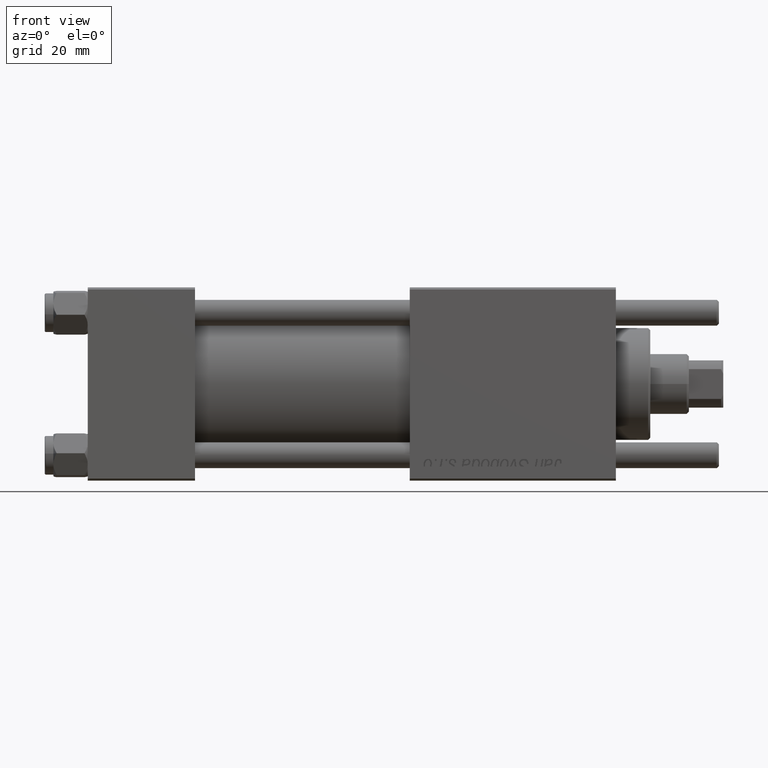
[diagram: clean part render]
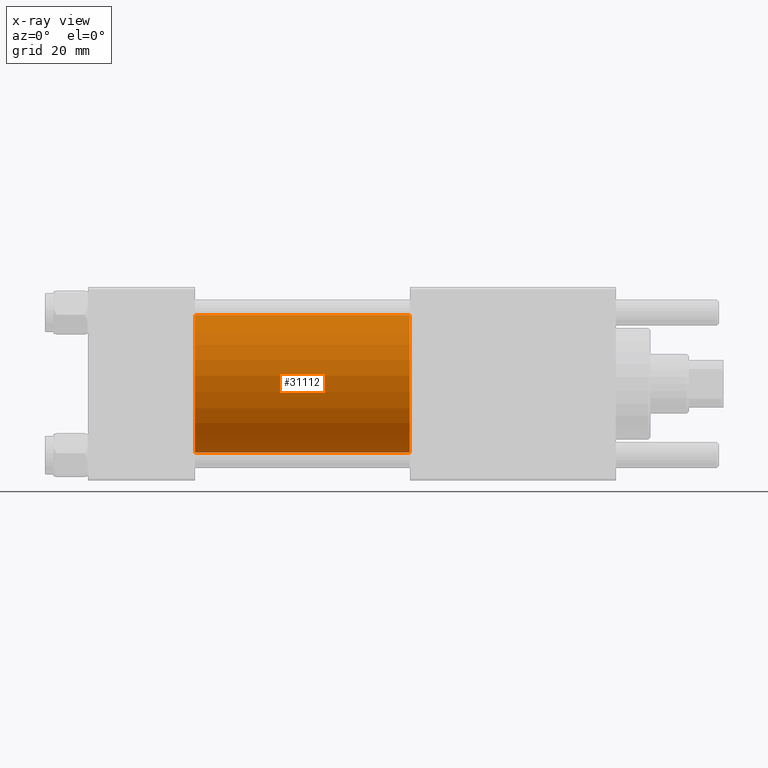
[diagram: x-ray — body ghosted, one internal face saturated and labeled with its STEP entity id]
A machine part, front view, then the same camera in x-ray: the body is ghosted and one INTERNAL B-rep face — a face not visible from any outside direction — is saturated and labeled: STEP entity #31112.
In plain terms, the highlighted cylindrical surface (partial cylindrical patch) has radius 16 mm, axis along (-1, -0, -0).
Its self-contained STEP definition (entity closure, byte-faithful):
#1060 = CARTESIAN_POINT ( 'NONE',  ( 75.00000000000001421, -2.602085213965210642E-15, 16.00000000000000000 ) ) ;
#2006 = DIRECTION ( 'NONE',  ( -1.000000000000000000, -0.000000000000000000, -0.000000000000000000 ) ) ;
#7923 = CARTESIAN_POINT ( 'NONE',  ( 25.00000000000000000, -2.602085213965210642E-15, 16.00000000000000000 ) ) ;
#7983 = CARTESIAN_POINT ( 'NONE',  ( 25.00000000000000000, -2.602085213965210642E-15, 0.000000000000000000 ) ) ;
#8194 = CARTESIAN_POINT ( 'NONE',  ( 75.00000000000001421, -2.602085213965210642E-15, 0.000000000000000000 ) ) ;
#9200 = AXIS2_PLACEMENT_3D ( 'NONE', #8194, #29444, #21407 ) ;
#11927 = CYLINDRICAL_SURFACE ( 'NONE', #9200, 16.00000000000000000 ) ;
#12515 = EDGE_LOOP ( 'NONE', ( #51544, #53119, #39608, #27168 ) ) ;
#16219 = VERTEX_POINT ( 'NONE', #1060 ) ;
#16997 = LINE ( 'NONE', #21583, #19082 ) ;
#17710 = CARTESIAN_POINT ( 'NONE',  ( 25.00000000000000000, -6.426503353294456087E-16, -16.00000000000000000 ) ) ;
#19082 = VECTOR ( 'NONE', #33660, 1000.000000000000000 ) ;
#19516 = EDGE_CURVE ( 'NONE', #16219, #46341, #46774, .T. ) ;
#20801 = EDGE_CURVE ( 'NONE', #46676, #35733, #16997, .T. ) ;
#21407 = DIRECTION ( 'NONE',  ( 0.000000000000000000, 0.000000000000000000, 1.000000000000000000 ) ) ;
#21583 = CARTESIAN_POINT ( 'NONE',  ( 75.00000000000001421, -6.426503353294456087E-16, -16.00000000000000000 ) ) ;
#22921 = CIRCLE ( 'NONE', #37547, 16.00000000000000000 ) ;
#23644 = EDGE_CURVE ( 'NONE', #46341, #35733, #34649, .T. ) ;
#24852 = FACE_OUTER_BOUND ( 'NONE', #12515, .T. ) ;
#25494 = DIRECTION ( 'NONE',  ( 1.000000000000000000, 0.000000000000000000, 0.000000000000000000 ) ) ;
#27168 = ORIENTED_EDGE ( 'NONE', *, *, #19516, .F. ) ;
#29444 = DIRECTION ( 'NONE',  ( -1.000000000000000000, -0.000000000000000000, -0.000000000000000000 ) ) ;
#29994 = EDGE_CURVE ( 'NONE', #16219, #46676, #22921, .T. ) ;
#30057 = AXIS2_PLACEMENT_3D ( 'NONE', #7983, #25494, #51908 ) ;
#31112 = ADVANCED_FACE ( 'NONE', ( #24852 ), #11927, .F. ) ;
#32717 = DIRECTION ( 'NONE',  ( 0.000000000000000000, 0.000000000000000000, -1.000000000000000000 ) ) ;
#33660 = DIRECTION ( 'NONE',  ( -1.000000000000000000, -0.000000000000000000, -0.000000000000000000 ) ) ;
#33979 = CARTESIAN_POINT ( 'NONE',  ( 75.00000000000001421, -6.426503353294456087E-16, -16.00000000000000000 ) ) ;
#34649 = CIRCLE ( 'NONE', #30057, 16.00000000000000000 ) ;
#35733 = VERTEX_POINT ( 'NONE', #17710 ) ;
#37023 = CARTESIAN_POINT ( 'NONE',  ( 75.00000000000001421, -2.602085213965210642E-15, 0.000000000000000000 ) ) ;
#37547 = AXIS2_PLACEMENT_3D ( 'NONE', #37023, #45050, #32717 ) ;
#39608 = ORIENTED_EDGE ( 'NONE', *, *, #23644, .F. ) ;
#45050 = DIRECTION ( 'NONE',  ( 1.000000000000000000, 0.000000000000000000, 0.000000000000000000 ) ) ;
#46341 = VERTEX_POINT ( 'NONE', #7923 ) ;
#46676 = VERTEX_POINT ( 'NONE', #33979 ) ;
#46774 = LINE ( 'NONE', #55119, #48369 ) ;
#48369 = VECTOR ( 'NONE', #2006, 1000.000000000000000 ) ;
#51544 = ORIENTED_EDGE ( 'NONE', *, *, #29994, .T. ) ;
#51908 = DIRECTION ( 'NONE',  ( 0.000000000000000000, 0.000000000000000000, -1.000000000000000000 ) ) ;
#53119 = ORIENTED_EDGE ( 'NONE', *, *, #20801, .T. ) ;
#55119 = CARTESIAN_POINT ( 'NONE',  ( 75.00000000000001421, -2.602085213965210642E-15, 16.00000000000000000 ) ) ;